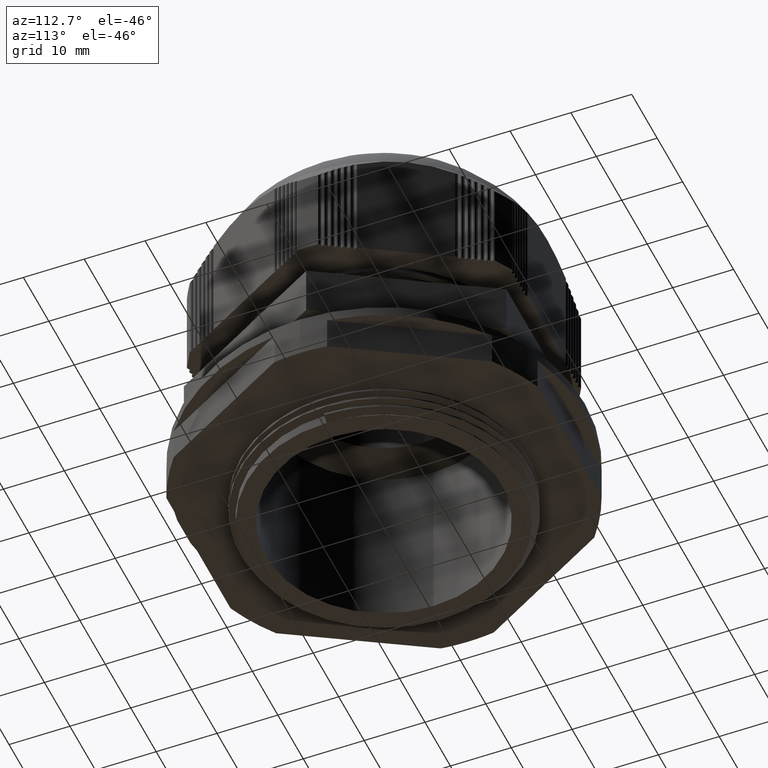
[diagram: clean part render]
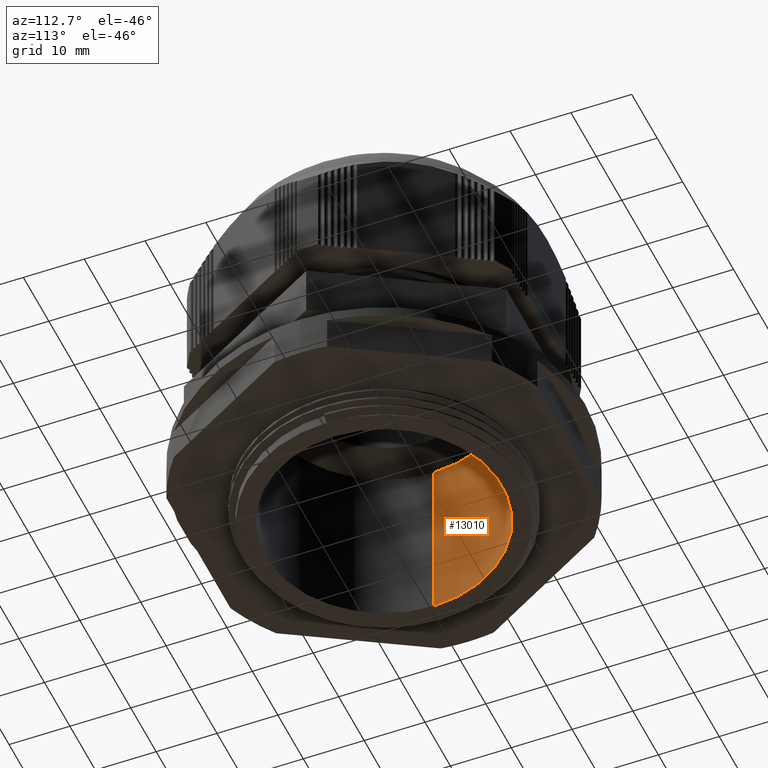
[diagram: same view with one face highlighted and labeled with its STEP entity id]
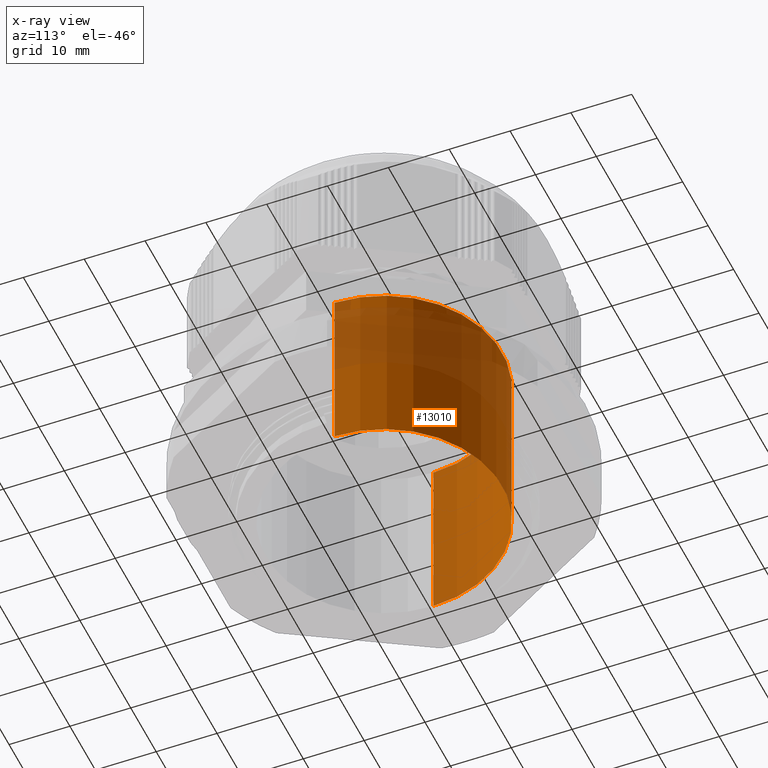
[diagram: x-ray of the same camera — body ghosted, the highlighted face saturated]
A machine part, auxiliary view. The second image highlights one B-rep face of the part: STEP entity #13010.
The next image is the same camera in x-ray: the body ghosted, the highlighted face saturated — about 34% of this face is hidden behind the body in this view.
In plain terms, the highlighted cylindrical surface (partial cylindrical patch) has radius 19.4 mm, axis along (-0, -0, -1).
Its self-contained STEP definition (entity closure, byte-faithful):
#3324 = LINE ( 'NONE', #3355, #9313 ) ;
#3326 = DIRECTION ( 'NONE',  ( -0.0000000000000000000, -0.0000000000000000000, -1.000000000000000000 ) ) ;
#3355 = CARTESIAN_POINT ( 'NONE',  ( 19.40000000000000900, 2.375814790345866000E-015, 55.50000000000000000 ) ) ;
#3441 = LINE ( 'NONE', #3467, #9263 ) ;
#3467 = CARTESIAN_POINT ( 'NONE',  ( -19.40000000000000900, 0.0000000000000000000, 55.50000000000000000 ) ) ;
#3469 = DIRECTION ( 'NONE',  ( -0.0000000000000000000, -0.0000000000000000000, -1.000000000000000000 ) ) ;
#3660 = VERTEX_POINT ( 'NONE', #16633 ) ;
#3661 = VERTEX_POINT ( 'NONE', #16592 ) ;
#3700 = VERTEX_POINT ( 'NONE', #16618 ) ;
#3710 = VERTEX_POINT ( 'NONE', #16595 ) ;
#8893 = AXIS2_PLACEMENT_3D ( 'NONE', #9907, #9913, #9894 ) ;
#9263 = VECTOR ( 'NONE', #3469, 1000.000000000000000 ) ;
#9313 = VECTOR ( 'NONE', #3326, 1000.000000000000000 ) ;
#9877 = FACE_OUTER_BOUND ( 'NONE', #20093, .T. ) ;
#9894 = DIRECTION ( 'NONE',  ( -1.000000000000000000, 0.0000000000000000000, 0.0000000000000000000 ) ) ;
#9904 = CYLINDRICAL_SURFACE ( 'NONE', #8893, 19.40000000000000900 ) ;
#9907 = CARTESIAN_POINT ( 'NONE',  ( 0.0000000000000000000, 0.0000000000000000000, 55.50000000000000000 ) ) ;
#9913 = DIRECTION ( 'NONE',  ( -0.0000000000000000000, -0.0000000000000000000, -1.000000000000000000 ) ) ;
#12646 = ORIENTED_EDGE ( 'NONE', *, *, #13949, .F. ) ;
#12664 = ORIENTED_EDGE ( 'NONE', *, *, #13344, .F. ) ;
#12743 = ORIENTED_EDGE ( 'NONE', *, *, #14021, .F. ) ;
#12749 = ORIENTED_EDGE ( 'NONE', *, *, #13372, .T. ) ;
#13010 = ADVANCED_FACE ( 'NONE', ( #9877 ), #9904, .F. ) ;
#13344 = EDGE_CURVE ( 'NONE', #3710, #3700, #3324, .T. ) ;
#13372 = EDGE_CURVE ( 'NONE', #3660, #3661, #3441, .T. ) ;
#13949 = EDGE_CURVE ( 'NONE', #3700, #3661, #24448, .T. ) ;
#14021 = EDGE_CURVE ( 'NONE', #3660, #3710, #23774, .T. ) ;
#16592 = CARTESIAN_POINT ( 'NONE',  ( -19.40000000000000900, 0.0000000000000000000, 0.0000000000000000000 ) ) ;
#16595 = CARTESIAN_POINT ( 'NONE',  ( 19.40000000000000900, 2.375814790345866000E-015, 29.14214185335528400 ) ) ;
#16618 = CARTESIAN_POINT ( 'NONE',  ( 19.40000000000000900, 2.375814790345866000E-015, 0.0000000000000000000 ) ) ;
#16633 = CARTESIAN_POINT ( 'NONE',  ( -19.40000000000000900, 0.0000000000000000000, 29.14214185335528400 ) ) ;
#20093 = EDGE_LOOP ( 'NONE', ( #12664, #12743, #12749, #12646 ) ) ;
#21991 = DIRECTION ( 'NONE',  ( 0.0000000000000000000, 0.0000000000000000000, 1.000000000000000000 ) ) ;
#22076 = CARTESIAN_POINT ( 'NONE',  ( 0.0000000000000000000, 0.0000000000000000000, 0.0000000000000000000 ) ) ;
#22078 = DIRECTION ( 'NONE',  ( -1.000000000000000000, 0.0000000000000000000, 0.0000000000000000000 ) ) ;
#22318 = CARTESIAN_POINT ( 'NONE',  ( 0.0000000000000000000, 0.0000000000000000000, 29.14214185335528400 ) ) ;
#22321 = DIRECTION ( 'NONE',  ( -0.0000000000000000000, -0.0000000000000000000, -1.000000000000000000 ) ) ;
#22324 = DIRECTION ( 'NONE',  ( -1.000000000000000000, 0.0000000000000000000, 0.0000000000000000000 ) ) ;
#23766 = AXIS2_PLACEMENT_3D ( 'NONE', #22318, #22321, #22324 ) ;
#23774 = CIRCLE ( 'NONE', #23766, 19.40000000000000900 ) ;
#24448 = CIRCLE ( 'NONE', #24453, 19.40000000000000900 ) ;
#24453 = AXIS2_PLACEMENT_3D ( 'NONE', #22076, #21991, #22078 ) ;